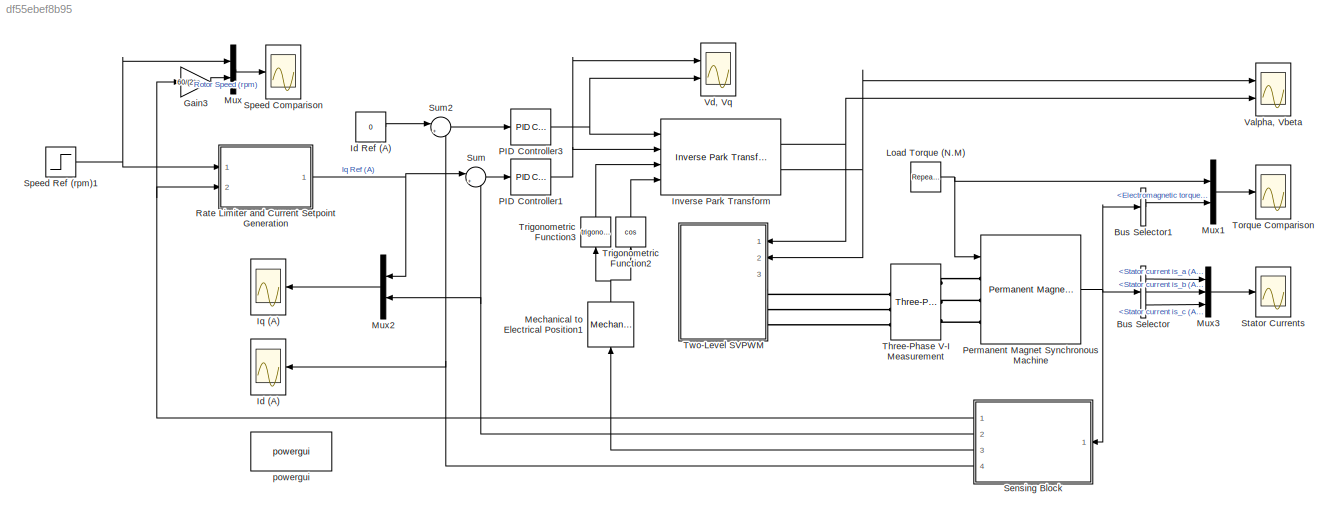
MODEL slx_df55ebef8b95
KIND model
CONFIG AbsTol = auto
CONFIG EnableMultiTasking = off
CONFIG FixedStep = auto
CONFIG MaxStep = auto
CONFIG MinStep = auto
CONFIG RelTol = 1e-3
CONFIG SampleTimeConstraint = Unconstrained
CONFIG Solver = VariableStepAuto
CONFIG SolverName = VariableStepAuto
CONFIG StartTime = 0.0
CONFIG StopTime = 1
BLOCK [BusSelector] Bus Selector
  OutputSignals = Stator current is_a (A),Stator current is_b (A),Stator current is_c (A)
  Ports = [1, 3]
BLOCK [BusSelector] Bus Selector1
  OutputSignals = Electromagnetic torque Te (N*m)
  Ports = [1, 1]
BLOCK [Gain] Gain3
  Gain = 60/(2*pi)
BLOCK [Scope] Id (A)
  Floating = off
  NumInputPorts = 1
  Ports = [1]
  ScopeSpecificationString = Simulink.scopes.TimeScopeBlockCfg('CurrentConfiguration', extmgr.ConfigurationSet(extmgr.Configuration('Core','General UI',true),extmgr.Configuration('Core','Source UI',true),extmgr.Configuration('Sources','WiredSimulink',true,'DataLoggingVariableName','Id','DataLogging',true,'DataLoggingSaveFormat','Array'),extmgr.Configuration('Visuals','Time Domain',true,'SerializedDisplays',{struct('MinYLimRea...<+1706ch>
BLOCK [Constant] Id Ref (A)
  Value = 0
BLOCK [Reference] Inverse Park Transform  REF=mcbcontrolslib/Inverse Park Transform
  Ports = [4, 2]
  SourceBlock = mcbcontrolslib/Inverse Park Transform
  SourceProductBaseCode = MT
  SourceType = Inverse Park Transform
BLOCK [Scope] Iq (A)
  Floating = off
  NumInputPorts = 1
  Ports = [1]
  ScopeSpecificationString = Simulink.scopes.TimeScopeBlockCfg('CurrentConfiguration', extmgr.ConfigurationSet(extmgr.Configuration('Core','General UI',true),extmgr.Configuration('Core','Source UI',true),extmgr.Configuration('Sources','WiredSimulink',true,'DataLoggingVariableName','Iq','DataLogging',true,'DataLoggingSaveFormat','Array'),extmgr.Configuration('Visuals','Time Domain',true,'SerializedDisplays',{struct('MinYLimRea...<+1720ch>
BLOCK [Reference] Load Torque (N.M)  REF=simulink/Sources/Repeating
Sequence
Stair
  Ports = [0, 1]
  SourceBlock = simulink/Sources/Repeating\nSequence\nStair
  SourceProductBaseCode = SL
  SourceType = Repeating Sequence Stair
BLOCK [Reference] Mechanical to Electrical Position1  REF=mcbpositiondecoderlib/Mechanical to Electrical Position
  NameLocation = left
  Ports = [1, 1]
  SourceBlock = mcbpositiondecoderlib/Mechanical to Electrical Position
  SourceProductBaseCode = MT
  SourceType = Mechanical to Electrical Position
BLOCK [Mux] Mux
  DisplayOption = bar
  Inputs = 2
  Ports = [2, 1]
BLOCK [Mux] Mux1
  DisplayOption = bar
  Inputs = 2
  Ports = [2, 1]
BLOCK [Mux] Mux2
  DisplayOption = bar
  Inputs = 2
  Ports = [2, 1]
BLOCK [Mux] Mux3
  DisplayOption = bar
  Inputs = 3
  Ports = [3, 1]
BLOCK [Reference] PID Controller1  REF=simulink/Continuous/PID Controller
  Ports = [1, 1]
  SourceBlock = simulink/Continuous/PID Controller
  SourceProductBaseCode = SL
  SourceType = PID 1dof
BLOCK [Reference] PID Controller3  REF=simulink/Continuous/PID Controller
  Ports = [1, 1]
  SourceBlock = simulink/Continuous/PID Controller
  SourceProductBaseCode = SL
  SourceType = PID 1dof
BLOCK [Reference] Permanent Magnet Synchronous Machine  REF=powerlib/Machines/Permanent Magnet
Synchronous Machine
  Ports = [1, 1, 0, 0, 0, 3]
  SourceBlock = powerlib/Machines/Permanent Magnet\nSynchronous Machine
  SourceProductBaseCode = PS
  SourceType = Permanent Magnet Synchronous Machine
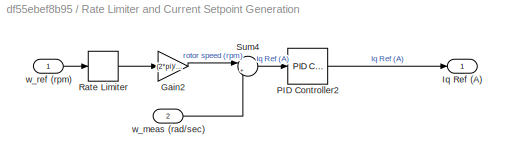
BLOCK [SubSystem] Rate Limiter and Current Setpoint Generation
  Ports = [2, 1]
  RequestExecContextInheritance = off
BLOCK [Gain] Rate Limiter and Current Setpoint Generation/Gain2
  Gain = (2*pi)/60
BLOCK [Outport] Rate Limiter and Current Setpoint Generation/Iq Ref (A)
BLOCK [Reference] Rate Limiter and Current Setpoint Generation/PID Controller2  REF=simulink/Continuous/PID Controller
  Ports = [1, 1]
  SourceBlock = simulink/Continuous/PID Controller
  SourceProductBaseCode = SL
  SourceType = PID 1dof
BLOCK [RateLimiter] Rate Limiter and Current Setpoint Generation/Rate Limiter
  FallingSlewLimit = -(2000-0)/(0.088-0)
  LinearizeAsGain = off
  RisingSlewLimit = (2000-0)/(0.088-0)
  SampleTimeMode = inherited
BLOCK [Sum] Rate Limiter and Current Setpoint Generation/Sum4
  Inputs = |+-
  Ports = [2, 1]
BLOCK [Inport] Rate Limiter and Current Setpoint Generation/w_meas (rad//sec)
  Port = 2
BLOCK [Inport] Rate Limiter and Current Setpoint Generation/w_ref (rpm)
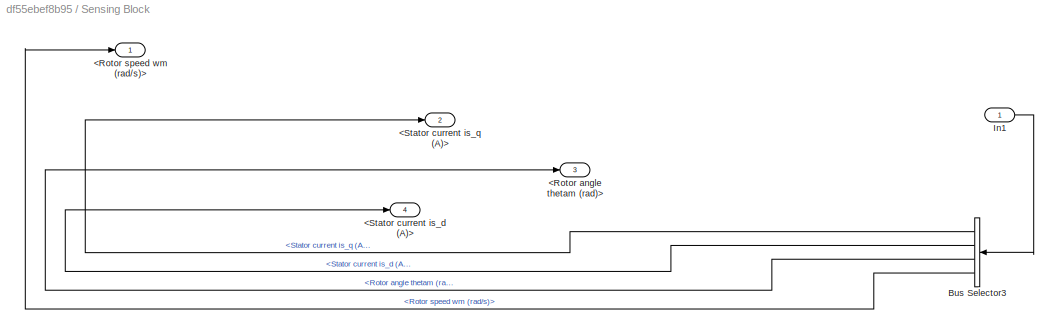
BLOCK [SubSystem] Sensing Block
  Ports = [1, 4]
  RequestExecContextInheritance = off
BLOCK [Outport] Sensing Block/<Rotor angle thetam (rad)>
  Port = 3
BLOCK [Outport] Sensing Block/<Rotor speed wm (rad//s)>
BLOCK [Outport] Sensing Block/<Stator current is_d (A)>
  Port = 4
BLOCK [Outport] Sensing Block/<Stator current is_q (A)>
  Port = 2
BLOCK [BusSelector] Sensing Block/Bus Selector3
  OutputSignals = Stator current is_q (A),Stator current is_d (A),Rotor angle thetam (rad),Rotor speed wm (rad/s)
  Ports = [1, 4]
BLOCK [Inport] Sensing Block/In1
BLOCK [Scope] Speed Comparison
  Floating = off
  NumInputPorts = 1
  Ports = [1]
  ScopeSpecificationString = Simulink.scopes.TimeScopeBlockCfg('CurrentConfiguration', extmgr.ConfigurationSet(extmgr.Configuration('Core','General UI',true,'FigureColor',[0 0 0]),extmgr.Configuration('Core','Source UI',true),extmgr.Configuration('Sources','WiredSimulink',true,'DataLoggingVariableName','Speed','DataLogging',true,'DataLoggingSaveFormat','Array'),extmgr.Configuration('Visuals','Time Domain',true,'SerializedDisp...<+1862ch>
BLOCK [Step] Speed Ref (rpm)1
  After = 400
  SampleTime = 0
  Time = 0.02
BLOCK [Scope] Stator Currents
  Floating = off
  NumInputPorts = 1
  Ports = [1]
  ScopeSpecificationString = Simulink.scopes.TimeScopeBlockCfg('CurrentConfiguration', extmgr.ConfigurationSet(extmgr.Configuration('Core','General UI',true),extmgr.Configuration('Core','Source UI',true),extmgr.Configuration('Sources','WiredSimulink',true,'DataLoggingVariableName','Stator_Currents','DataLogging',true,'DataLoggingSaveFormat','Array'),extmgr.Configuration('Visuals','Time Domain',true,'SerializedDisplays',{struc...<+1645ch>
BLOCK [Sum] Sum
  Inputs = |+-
  Ports = [2, 1]
BLOCK [Sum] Sum2
  Inputs = |+-
  Ports = [2, 1]
BLOCK [Reference] Three-Phase V-I Measurement  REF=powerlib/Measurements/Three-Phase
V-I Measurement
  Ports = [0, 1, 0, 0, 0, 3, 3]
  SourceBlock = powerlib/Measurements/Three-Phase\nV-I Measurement
  SourceProductBaseCode = PS
  SourceType = Three-Phase VI Measurement
BLOCK [Scope] Torque Comparison
  Floating = off
  NumInputPorts = 1
  Ports = [1]
  ScopeSpecificationString = Simulink.scopes.TimeScopeBlockCfg('CurrentConfiguration', extmgr.ConfigurationSet(extmgr.Configuration('Core','General UI',true),extmgr.Configuration('Core','Source UI',true),extmgr.Configuration('Sources','WiredSimulink',true,'DataLoggingVariableName','Torque_Comparison','DataLogging',true,'DataLoggingSaveFormat','Array'),extmgr.Configuration('Visuals','Time Domain',true,'SerializedDisplays',{str...<+1619ch>
BLOCK [Trigonometry] Trigonometric Function2
  NameLocation = left
  Operator = cos
  Ports = [1, 1]
BLOCK [Trigonometry] Trigonometric Function3
  NameLocation = left
  Ports = [1, 1]
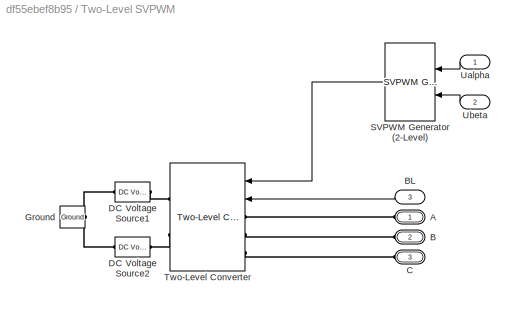
BLOCK [SubSystem] Two-Level SVPWM
  Ports = [3, 0, 0, 0, 0, 3]
  RequestExecContextInheritance = off
BLOCK [PMIOPort] Two-Level SVPWM/A
  Side = Left
BLOCK [PMIOPort] Two-Level SVPWM/B
  Port = 2
  Side = Left
BLOCK [Inport] Two-Level SVPWM/BL
  Port = 3
BLOCK [PMIOPort] Two-Level SVPWM/C
  Port = 3
  Side = Left
BLOCK [Reference] Two-Level SVPWM/DC Voltage Source1  REF=powerlib/Electrical
Sources/DC Voltage Source
  Ports = [0, 0, 0, 0, 0, 1, 1]
  SourceBlock = powerlib/Electrical\nSources/DC Voltage Source
  SourceProductBaseCode = PS
  SourceType = DC Voltage Source
BLOCK [Reference] Two-Level SVPWM/DC Voltage Source2  REF=powerlib/Electrical
Sources/DC Voltage Source
  Ports = [0, 0, 0, 0, 0, 1, 1]
  SourceBlock = powerlib/Electrical\nSources/DC Voltage Source
  SourceProductBaseCode = PS
  SourceType = DC Voltage Source
BLOCK [Reference] Two-Level SVPWM/Ground  REF=powerlib/Elements/Ground
  Ports = [0, 0, 0, 0, 0, 1]
  SourceBlock = powerlib/Elements/Ground
  SourceProductBaseCode = PS
  SourceType = Ground
BLOCK [Reference] Two-Level SVPWM/SVPWM Generator (2-Level)  REF=powerlib_meascontrol/Pulse & Signal
Generators/SVPWM Generator
(2-Level)
  Ports = [2, 1]
  SourceBlock = powerlib_meascontrol/Pulse & Signal\nGenerators/SVPWM Generator\n(2-Level)
  SourceProductBaseCode = PS
  SourceType = SVPWM Generator (2-Level)
BLOCK [Reference] Two-Level SVPWM/Two-Level Converter  REF=powerlib/Power
Electronics/Two-Level Converter
  Ports = [2, 0, 0, 0, 0, 3, 2]
  SourceBlock = powerlib/Power\nElectronics/Two-Level Converter
  SourceProductBaseCode = PS
  SourceType = Two-Level Converter
BLOCK [Inport] Two-Level SVPWM/Ualpha
BLOCK [Inport] Two-Level SVPWM/Ubeta
  Port = 2
BLOCK [Scope] Valpha, Vbeta
  Floating = off
  NumInputPorts = 2
  Ports = [2]
  ScopeSpecificationString = Simulink.scopes.TimeScopeBlockCfg('CurrentConfiguration', extmgr.ConfigurationSet(extmgr.Configuration('Core','General UI',true),extmgr.Configuration('Core','Source UI',true),extmgr.Configuration('Sources','WiredSimulink',true,'DataLoggingVariableName','ScopeData6'),extmgr.Configuration('Visuals','Time Domain',true,'SerializedDisplays',{struct('MinYLimReal','-28.60917','MaxYLimReal','38.86585','YL...<+2064ch>
BLOCK [Scope] Vd, Vq
  Floating = off
  NumInputPorts = 2
  Ports = [2]
  ScopeSpecificationString = Simulink.scopes.TimeScopeBlockCfg('CurrentConfiguration', extmgr.ConfigurationSet(extmgr.Configuration('Core','General UI',true),extmgr.Configuration('Core','Source UI',true),extmgr.Configuration('Sources','WiredSimulink',true),extmgr.Configuration('Visuals','Time Domain',true,'SerializedDisplays',{struct('MinYLimReal','-24.7545','MaxYLimReal','204.36208','YLabelReal','','MinYLimMag','0.00000','Ma...<+2007ch>
BLOCK [Reference] powergui  REF=powerlib/powergui
  Ports = []
  Priority = 1
  SourceBlock = powerlib/powergui
  SourceProductBaseCode = PS
  SourceType = PSB option menu block
LINE Bus Selector1:1 -> Mux1:2
LINE Bus Selector:1 -> Mux3:1
LINE Bus Selector:2 -> Mux3:2
LINE Bus Selector:3 -> Mux3:3
LINE Gain3:1 -> Mux:2
LINE Id Ref (A):1 -> Sum2:1
NET Inverse Park Transform:1 -> Two-Level SVPWM:1, Valpha, Vbeta:2
NET Inverse Park Transform:2 -> Two-Level SVPWM:2, Valpha, Vbeta:1
NET Load Torque (N.M):1 -> Mux1:1, Permanent Magnet Synchronous Machine:1
NET Mechanical to Electrical Position1:1 -> Trigonometric Function2:1, Trigonometric Function3:1
LINE Mux1:1 -> Torque Comparison:1
LINE Mux2:1 -> Iq (A):1
LINE Mux3:1 -> Stator Currents:1
LINE Mux:1 -> Speed Comparison:1
NET PID Controller1:1 -> Inverse Park Transform:2, Vd, Vq:1
NET PID Controller3:1 -> Inverse Park Transform:1, Vd, Vq:2
NET Permanent Magnet Synchronous Machine:1 -> Bus Selector1:1, Bus Selector:1, Sensing Block:1
LINE Rate Limiter and Current Setpoint Generation/Gain2:1 -> Rate Limiter and Current Setpoint Generation/Sum4:1
LINE Rate Limiter and Current Setpoint Generation/PID Controller2:1 -> Rate Limiter and Current Setpoint Generation/Iq Ref (A):1
LINE Rate Limiter and Current Setpoint Generation/Rate Limiter:1 -> Rate Limiter and Current Setpoint Generation/Gain2:1
LINE Rate Limiter and Current Setpoint Generation/Sum4:1 -> Rate Limiter and Current Setpoint Generation/PID Controller2:1
LINE Rate Limiter and Current Setpoint Generation/w_meas (rad//sec):1 -> Rate Limiter and Current Setpoint Generation/Sum4:2
LINE Rate Limiter and Current Setpoint Generation/w_ref (rpm):1 -> Rate Limiter and Current Setpoint Generation/Rate Limiter:1
NET Rate Limiter and Current Setpoint Generation:1 -> Mux2:1, Sum:1
LINE Sensing Block/Bus Selector3:1 -> Sensing Block/<Stator current is_q (A)>:1
LINE Sensing Block/Bus Selector3:2 -> Sensing Block/<Stator current is_d (A)>:1
LINE Sensing Block/Bus Selector3:3 -> Sensing Block/<Rotor angle thetam (rad)>:1
LINE Sensing Block/Bus Selector3:4 -> Sensing Block/<Rotor speed wm (rad//s)>:1
LINE Sensing Block/In1:1 -> Sensing Block/Bus Selector3:1
NET Sensing Block:1 -> Gain3:1, Rate Limiter and Current Setpoint Generation:2
NET Sensing Block:2 -> Mux2:2, Sum:2
LINE Sensing Block:3 -> Mechanical to Electrical Position1:1
NET Sensing Block:4 -> Id (A):1, Sum2:2
NET Speed Ref (rpm)1:1 -> Mux:1, Rate Limiter and Current Setpoint Generation:1
LINE Sum2:1 -> PID Controller3:1
LINE Sum:1 -> PID Controller1:1
LINE Trigonometric Function2:1 -> Inverse Park Transform:4
LINE Trigonometric Function3:1 -> Inverse Park Transform:3
LINE Two-Level SVPWM/BL:1 -> Two-Level SVPWM/Two-Level Converter:2
LINE Two-Level SVPWM/SVPWM Generator (2-Level):1 -> Two-Level SVPWM/Two-Level Converter:1
LINE Two-Level SVPWM/Ualpha:1 -> Two-Level SVPWM/SVPWM Generator (2-Level):1
LINE Two-Level SVPWM/Ubeta:1 -> Two-Level SVPWM/SVPWM Generator (2-Level):2
PLINE Permanent Magnet Synchronous Machine:LConn1 -- Three-Phase V-I Measurement:LConn1
PLINE Permanent Magnet Synchronous Machine:LConn2 -- Three-Phase V-I Measurement:LConn2
PLINE Permanent Magnet Synchronous Machine:LConn3 -- Three-Phase V-I Measurement:LConn3
PLINE Three-Phase V-I Measurement:RConn1 -- Two-Level SVPWM:LConn1
PLINE Three-Phase V-I Measurement:RConn2 -- Two-Level SVPWM:LConn2
PLINE Three-Phase V-I Measurement:RConn3 -- Two-Level SVPWM:LConn3
PLINE Two-Level SVPWM/A:RConn1 -- Two-Level SVPWM/Two-Level Converter:LConn1
PLINE Two-Level SVPWM/B:RConn1 -- Two-Level SVPWM/Two-Level Converter:LConn2
PLINE Two-Level SVPWM/C:RConn1 -- Two-Level SVPWM/Two-Level Converter:LConn3
PNET net1: Two-Level SVPWM/DC Voltage Source1:LConn1 -- Two-Level SVPWM/DC Voltage Source2:RConn1 -- Two-Level SVPWM/Ground:LConn1
PLINE Two-Level SVPWM/DC Voltage Source1:RConn1 -- Two-Level SVPWM/Two-Level Converter:RConn1
PLINE Two-Level SVPWM/DC Voltage Source2:LConn1 -- Two-Level SVPWM/Two-Level Converter:RConn2
note: NET lines group one-source signal fan-out (src -> all destinations, sorted); 1:1 wires keep LINE; PNET lines group multi-terminal physical nets as a canonical sorted terminal list (undirected conserving connections); 2-terminal nets keep the pairwise PLINE form
